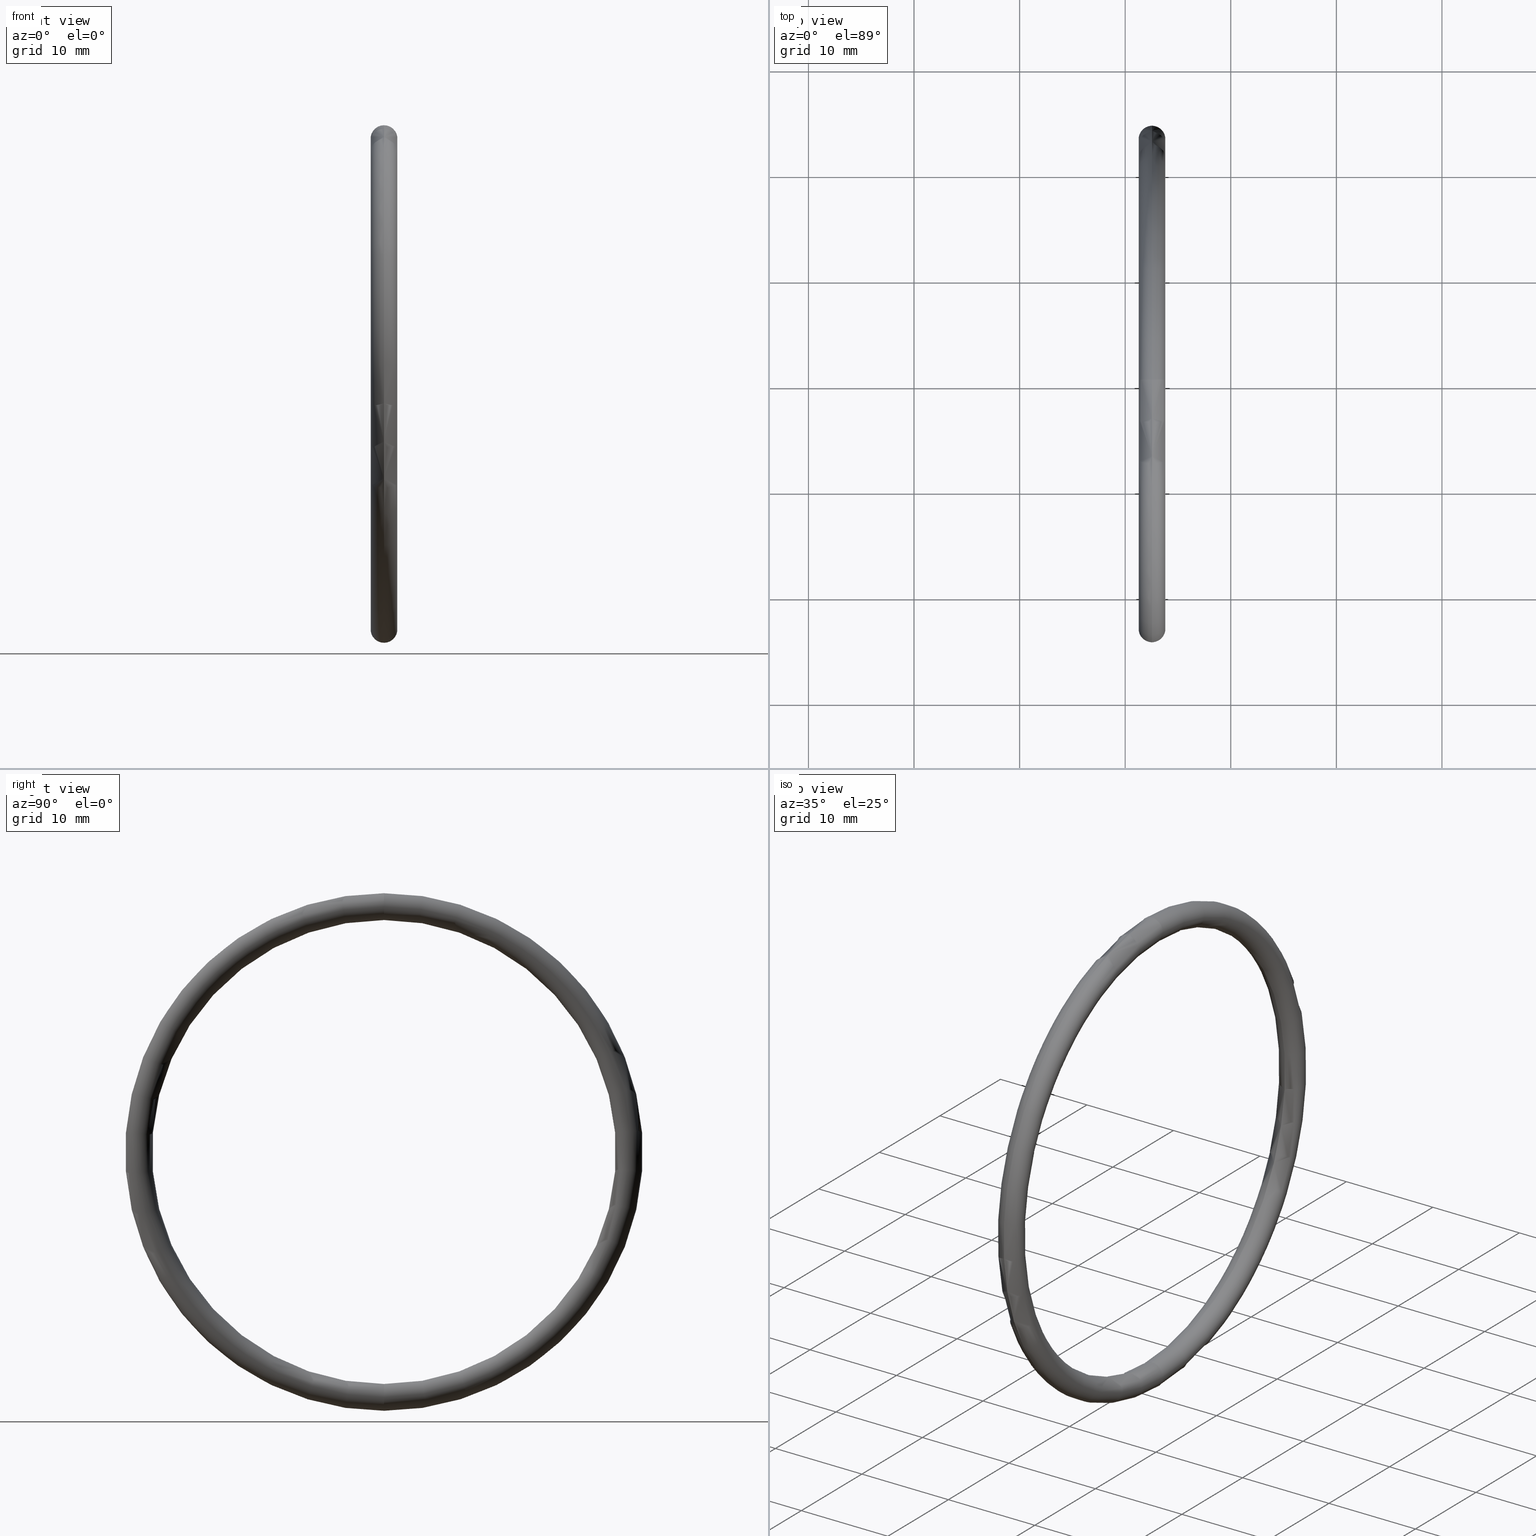
[diagram: canonical four-view strip — front | top / right | iso, engineering-drawing reading convention]
A machine part, canonical four-view strip (front | top / right | iso — engineering-drawing reading convention). The complete STEP part file that produces these views, byte-faithful:
ISO-10303-21;
HEADER;
FILE_DESCRIPTION (( 'STEP AP203' ),
    '1' );
FILE_NAME ('OR-64-BN.STEP',
    '2008-03-29T10:09:37',
    ( 'Baystate-05' ),
    ( 'BayState InfoTech' ),
    'SwSTEP 2.0',
    'SolidWorks 2007',
    '' );
FILE_SCHEMA (( 'CONFIG_CONTROL_DESIGN' ));
ENDSEC;

DATA;
#1 = MANIFOLD_SOLID_BREP ( 'NONE', #58 ) ;
#2 = EDGE_CURVE ( 'NONE', #34, #6, #30, .T. ) ;
#3 = ORIENTED_EDGE ( 'NONE', *, *, #21, .T. ) ;
#4 = ORIENTED_EDGE ( 'NONE', *, *, #66, .F. ) ;
#5 = VERTEX_POINT ( 'NONE', #14 ) ;
#6 = VERTEX_POINT ( 'NONE', #13 ) ;
#7 = ORIENTED_EDGE ( 'NONE', *, *, #55, .F. ) ;
#8 = ORIENTED_EDGE ( 'NONE', *, *, #9, .F. ) ;
#9 = EDGE_CURVE ( 'NONE', #6, #54, #44, .T. ) ;
#10 = ADVANCED_FACE ( 'NONE', ( #12 ), #39, .T. ) ;
#11 = CARTESIAN_POINT ( 'NONE',  ( 0.1000000000000001300, 0.0000000000000000000, 0.0000000000000000000 ) ) ;
#12 = FACE_OUTER_BOUND ( 'NONE', #18, .T. ) ;
#13 = CARTESIAN_POINT ( 'NONE',  ( 0.1000000000000001300, 0.0000000000000000000, 0.8649999999999998800 ) ) ;
#14 = CARTESIAN_POINT ( 'NONE',  ( 0.1000000000000001300, 1.181784161177195800E-016, -0.9649999999999999700 ) ) ;
#15 = DIRECTION ( 'NONE',  ( 0.0000000000000000000, 0.0000000000000000000, -1.000000000000000000 ) ) ;
#16 = DIRECTION ( 'NONE',  ( 0.0000000000000000000, -1.000000000000000000, 0.0000000000000000000 ) ) ;
#17 = CARTESIAN_POINT ( 'NONE',  ( 0.1000000000000001300, 0.0000000000000000000, 0.9149999999999999200 ) ) ;
#18 = EDGE_LOOP ( 'NONE', ( #19, #20, #62, #46 ) ) ;
#19 = ORIENTED_EDGE ( 'NONE', *, *, #65, .F. ) ;
#20 = ORIENTED_EDGE ( 'NONE', *, *, #21, .F. ) ;
#21 = EDGE_CURVE ( 'NONE', #6, #34, #52, .T. ) ;
#22 = ORIENTED_EDGE ( 'NONE', *, *, #66, .T. ) ;
#23 = ORIENTED_EDGE ( 'NONE', *, *, #2, .T. ) ;
#24 = CARTESIAN_POINT ( 'NONE',  ( 0.1000000000000001300, 0.0000000000000000000, 0.9649999999999999700 ) ) ;
#25 = DIRECTION ( 'NONE',  ( 0.0000000000000000000, 0.0000000000000000000, 1.000000000000000000 ) ) ;
#26 = DIRECTION ( 'NONE',  ( -1.000000000000000000, 0.0000000000000000000, 0.0000000000000000000 ) ) ;
#27 = CARTESIAN_POINT ( 'NONE',  ( 0.1000000000000001300, 0.0000000000000000000, 0.0000000000000000000 ) ) ;
#28 = AXIS2_PLACEMENT_3D ( 'NONE', #27, #26, #25 ) ;
#29 = AXIS2_PLACEMENT_3D ( 'NONE', #17, #16, #15 ) ;
#30 = CIRCLE ( 'NONE', #29, 0.05000000000000001000 ) ;
#31 = ORIENTED_EDGE ( 'NONE', *, *, #2, .F. ) ;
#32 = ORIENTED_EDGE ( 'NONE', *, *, #33, .T. ) ;
#33 = EDGE_CURVE ( 'NONE', #5, #34, #47, .T. ) ;
#34 = VERTEX_POINT ( 'NONE', #24 ) ;
#35 = EDGE_CURVE ( 'NONE', #54, #5, #196, .T. ) ;
#36 = ADVANCED_FACE ( 'NONE', ( #191 ), #193, .T. ) ;
#37 = CARTESIAN_POINT ( 'NONE',  ( 0.1000000000000001300, 0.0000000000000000000, 0.0000000000000000000 ) ) ;
#38 = AXIS2_PLACEMENT_3D ( 'NONE', #37, #40, #53 ) ;
#39 = TOROIDAL_SURFACE ( 'NONE', #38, 0.9149999999999999200, 0.05000000000000002400 ) ;
#40 = DIRECTION ( 'NONE',  ( -1.000000000000000000, 0.0000000000000000000, 0.0000000000000000000 ) ) ;
#41 = DIRECTION ( 'NONE',  ( 0.0000000000000000000, 0.0000000000000000000, 1.000000000000000000 ) ) ;
#42 = DIRECTION ( 'NONE',  ( -1.000000000000000000, 0.0000000000000000000, 0.0000000000000000000 ) ) ;
#43 = AXIS2_PLACEMENT_3D ( 'NONE', #11, #42, #41 ) ;
#44 = CIRCLE ( 'NONE', #43, 0.8649999999999998800 ) ;
#45 = EDGE_LOOP ( 'NONE', ( #59, #61, #60, #3 ) ) ;
#46 = ORIENTED_EDGE ( 'NONE', *, *, #35, .T. ) ;
#47 = CIRCLE ( 'NONE', #28, 0.9649999999999999700 ) ;
#48 = DIRECTION ( 'NONE',  ( 0.0000000000000000000, 0.0000000000000000000, -1.000000000000000000 ) ) ;
#49 = DIRECTION ( 'NONE',  ( 0.0000000000000000000, -1.000000000000000000, 0.0000000000000000000 ) ) ;
#50 = CARTESIAN_POINT ( 'NONE',  ( 0.1000000000000001300, 0.0000000000000000000, 0.9149999999999999200 ) ) ;
#51 = AXIS2_PLACEMENT_3D ( 'NONE', #50, #49, #48 ) ;
#52 = CIRCLE ( 'NONE', #51, 0.05000000000000001000 ) ;
#53 = DIRECTION ( 'NONE',  ( 0.0000000000000000000, 0.0000000000000000000, 1.000000000000000000 ) ) ;
#54 = VERTEX_POINT ( 'NONE', #166 ) ;
#55 = EDGE_CURVE ( 'NONE', #54, #6, #124, .T. ) ;
#56 = ADVANCED_FACE ( 'NONE', ( #125 ), #169, .T. ) ;
#57 = EDGE_LOOP ( 'NONE', ( #31, #64, #22, #8 ) ) ;
#58 = CLOSED_SHELL ( 'NONE', ( #67, #56, #10, #36 ) ) ;
#59 = ORIENTED_EDGE ( 'NONE', *, *, #33, .F. ) ;
#60 = ORIENTED_EDGE ( 'NONE', *, *, #55, .T. ) ;
#61 = ORIENTED_EDGE ( 'NONE', *, *, #35, .F. ) ;
#62 = ORIENTED_EDGE ( 'NONE', *, *, #9, .T. ) ;
#63 = EDGE_LOOP ( 'NONE', ( #4, #32, #23, #7 ) ) ;
#64 = ORIENTED_EDGE ( 'NONE', *, *, #65, .T. ) ;
#65 = EDGE_CURVE ( 'NONE', #34, #5, #71, .T. ) ;
#66 = EDGE_CURVE ( 'NONE', #5, #54, #79, .T. ) ;
#67 = ADVANCED_FACE ( 'NONE', ( #80 ), #81, .T. ) ;
#68 = DIRECTION ( 'NONE',  ( -1.000000000000000000, 0.0000000000000000000, 0.0000000000000000000 ) ) ;
#69 = CARTESIAN_POINT ( 'NONE',  ( 0.1000000000000001300, 0.0000000000000000000, 0.0000000000000000000 ) ) ;
#70 = AXIS2_PLACEMENT_3D ( 'NONE', #69, #68, #126 ) ;
#71 = CIRCLE ( 'NONE', #70, 0.9649999999999999700 ) ;
#72 = ORGANIZATION ( 'UNSPECIFIED', 'UNSPECIFIED', '' ) ;
#73 = PERSON ( 'UNSPECIFIED', 'UNSPECIFIED', 'UNSPECIFIED', ('UNSPECIFIED'), ('UNSPECIFIED'), ('UNSPECIFIED') ) ;
#74 = PRODUCT ( 'OR-64-BN', 'OR-64-BN', '', ( #75 ) ) ;
#75 = MECHANICAL_CONTEXT ( 'NONE', #152, 'mechanical' ) ;
#76 = APPLICATION_PROTOCOL_DEFINITION ( 'international standard', 'config_control_design', 1994, #152 ) ;
#77 = CARTESIAN_POINT ( 'NONE',  ( 0.1000000000000001300, 1.120551821219828000E-016, -0.9149999999999999200 ) ) ;
#78 = AXIS2_PLACEMENT_3D ( 'NONE', #77, #83, #82 ) ;
#79 = CIRCLE ( 'NONE', #78, 0.05000000000000001000 ) ;
#80 = FACE_OUTER_BOUND ( 'NONE', #63, .T. ) ;
#81 = TOROIDAL_SURFACE ( 'NONE', #122, 0.9149999999999999200, 0.05000000000000002400 ) ;
#82 = DIRECTION ( 'NONE',  ( 0.0000000000000000000, -1.224646799147354700E-016, 1.000000000000000000 ) ) ;
#83 = DIRECTION ( 'NONE',  ( 0.0000000000000000000, 1.000000000000000000, 1.224646799147353200E-016 ) ) ;
#84 =( CONVERSION_BASED_UNIT ( 'INCH', #85 ) LENGTH_UNIT ( ) NAMED_UNIT ( #86 ) );
#85 = LENGTH_MEASURE_WITH_UNIT ( LENGTH_MEASURE( 0.02539999999999999900 ), #95 );
#86 = DIMENSIONAL_EXPONENTS ( 1.000000000000000000, 0.0000000000000000000, 0.0000000000000000000, 0.0000000000000000000, 0.0000000000000000000, 0.0000000000000000000, 0.0000000000000000000 ) ;
#87 = UNCERTAINTY_MEASURE_WITH_UNIT (LENGTH_MEASURE( 1.000000000000000100E-005 ), #84, 'distance_accuracy_value', 'NONE');
#88 =( NAMED_UNIT ( * ) SI_UNIT ( $, .STERADIAN. ) SOLID_ANGLE_UNIT ( ) );
#89 = CARTESIAN_POINT ( 'NONE',  ( 0.1000000000000001300, 1.120551821219828000E-016, -0.9149999999999999200 ) ) ;
#90 = CARTESIAN_POINT ( 'NONE',  ( 0.1000000000000001300, 0.0000000000000000000, 0.0000000000000000000 ) ) ;
#91 = DIRECTION ( 'NONE',  ( 0.0000000000000000000, 0.0000000000000000000, 1.000000000000000000 ) ) ;
#92 = DIRECTION ( 'NONE',  ( -1.000000000000000000, 0.0000000000000000000, 0.0000000000000000000 ) ) ;
#93 = CARTESIAN_POINT ( 'NONE',  ( 0.1000000000000001300, 0.0000000000000000000, 0.0000000000000000000 ) ) ;
#94 = AXIS2_PLACEMENT_3D ( 'NONE', #93, #92, #91 ) ;
#95 =( LENGTH_UNIT ( ) NAMED_UNIT ( * ) SI_UNIT ( $, .METRE. ) );
#96 = DIRECTION ( 'NONE',  ( 0.0000000000000000000, 0.0000000000000000000, 1.000000000000000000 ) ) ;
#97 = AXIS2_PLACEMENT_3D ( 'NONE', #123, #145, #96 ) ;
#98 = PERSON_AND_ORGANIZATION ( #73, #72 ) ;
#99 = CC_DESIGN_APPROVAL ( #107, ( #110 ) ) ;
#100 = APPROVAL_DATE_TIME ( #101, #107 ) ;
#101 = DATE_AND_TIME ( #102, #103 ) ;
#102 = CALENDAR_DATE ( 2008, 29, 3 ) ;
#103 = LOCAL_TIME ( 15, 39, 37.00000000000000000, #104 ) ;
#104 = COORDINATED_UNIVERSAL_TIME_OFFSET ( 5, 30, .AHEAD. ) ;
#105 = APPROVAL_PERSON_ORGANIZATION ( #109, #107, #106 ) ;
#106 = APPROVAL_ROLE ( '' ) ;
#107 = APPROVAL ( #108, 'UNSPECIFIED' ) ;
#108 = APPROVAL_STATUS ( 'not_yet_approved' ) ;
#109 = PERSON_AND_ORGANIZATION ( #73, #72 ) ;
#110 = PRODUCT_DEFINITION_FORMATION_WITH_SPECIFIED_SOURCE ( 'ANY', '', #74, .NOT_KNOWN. ) ;
#111 = CC_DESIGN_DATE_AND_TIME_ASSIGNMENT ( #113, #112, ( #184 ) ) ;
#112 = DATE_TIME_ROLE ( 'creation_date' ) ;
#113 = DATE_AND_TIME ( #114, #115 ) ;
#114 = CALENDAR_DATE ( 2008, 29, 3 ) ;
#115 = LOCAL_TIME ( 15, 39, 37.00000000000000000, #116 ) ;
#116 = COORDINATED_UNIVERSAL_TIME_OFFSET ( 5, 30, .AHEAD. ) ;
#117 =( NAMED_UNIT ( * ) PLANE_ANGLE_UNIT ( ) SI_UNIT ( $, .RADIAN. ) );
#118 = CARTESIAN_POINT ( 'NONE',  ( 0.0000000000000000000, 0.0000000000000000000, 0.0000000000000000000 ) ) ;
#119 = DIRECTION ( 'NONE',  ( 0.0000000000000000000, 0.0000000000000000000, 1.000000000000000000 ) ) ;
#120 = DIRECTION ( 'NONE',  ( -1.000000000000000000, 0.0000000000000000000, 0.0000000000000000000 ) ) ;
#121 = CARTESIAN_POINT ( 'NONE',  ( 0.1000000000000001300, 0.0000000000000000000, 0.0000000000000000000 ) ) ;
#122 = AXIS2_PLACEMENT_3D ( 'NONE', #121, #120, #119 ) ;
#123 = CARTESIAN_POINT ( 'NONE',  ( 0.1000000000000001300, 0.0000000000000000000, 0.0000000000000000000 ) ) ;
#124 = CIRCLE ( 'NONE', #97, 0.8649999999999998800 ) ;
#125 = FACE_OUTER_BOUND ( 'NONE', #57, .T. ) ;
#126 = DIRECTION ( 'NONE',  ( 0.0000000000000000000, 0.0000000000000000000, 1.000000000000000000 ) ) ;
#127 = AXIS2_PLACEMENT_3D ( 'NONE', #89, #147, #146 ) ;
#128 = CC_DESIGN_APPROVAL ( #136, ( #156 ) ) ;
#129 = APPROVAL_DATE_TIME ( #130, #136 ) ;
#130 = DATE_AND_TIME ( #131, #132 ) ;
#131 = CALENDAR_DATE ( 2008, 29, 3 ) ;
#132 = LOCAL_TIME ( 15, 39, 37.00000000000000000, #133 ) ;
#133 = COORDINATED_UNIVERSAL_TIME_OFFSET ( 5, 30, .AHEAD. ) ;
#134 = APPROVAL_PERSON_ORGANIZATION ( #138, #136, #135 ) ;
#135 = APPROVAL_ROLE ( '' ) ;
#136 = APPROVAL ( #137, 'UNSPECIFIED' ) ;
#137 = APPROVAL_STATUS ( 'not_yet_approved' ) ;
#138 = PERSON_AND_ORGANIZATION ( #73, #72 ) ;
#139 = CC_DESIGN_DATE_AND_TIME_ASSIGNMENT ( #141, #140, ( #156 ) ) ;
#140 = DATE_TIME_ROLE ( 'classification_date' ) ;
#141 = DATE_AND_TIME ( #142, #143 ) ;
#142 = CALENDAR_DATE ( 2008, 29, 3 ) ;
#143 = LOCAL_TIME ( 15, 39, 37.00000000000000000, #144 ) ;
#144 = COORDINATED_UNIVERSAL_TIME_OFFSET ( 5, 30, .AHEAD. ) ;
#145 = DIRECTION ( 'NONE',  ( -1.000000000000000000, 0.0000000000000000000, 0.0000000000000000000 ) ) ;
#146 = DIRECTION ( 'NONE',  ( 0.0000000000000000000, -1.224646799147354700E-016, 1.000000000000000000 ) ) ;
#147 = DIRECTION ( 'NONE',  ( 0.0000000000000000000, 1.000000000000000000, 1.224646799147353200E-016 ) ) ;
#148 = DIRECTION ( 'NONE',  ( 1.000000000000000000, 0.0000000000000000000, 0.0000000000000000000 ) ) ;
#149 = DIRECTION ( 'NONE',  ( 0.0000000000000000000, 0.0000000000000000000, 1.000000000000000000 ) ) ;
#150 = AXIS2_PLACEMENT_3D ( 'NONE', #118, #149, #148 ) ;
#151 = SHAPE_DEFINITION_REPRESENTATION ( #163, #194 ) ;
#152 = APPLICATION_CONTEXT ( 'configuration controlled 3d designs of mechanical parts and assemblies' ) ;
#153 = CC_DESIGN_PERSON_AND_ORGANIZATION_ASSIGNMENT ( #155, #154, ( #156 ) ) ;
#154 = PERSON_AND_ORGANIZATION_ROLE ( 'classification_officer' ) ;
#155 = PERSON_AND_ORGANIZATION ( #73, #72 ) ;
#156 = SECURITY_CLASSIFICATION ( '', '', #157 ) ;
#157 = SECURITY_CLASSIFICATION_LEVEL ( 'unclassified' ) ;
#158 = CC_DESIGN_PERSON_AND_ORGANIZATION_ASSIGNMENT ( #160, #159, ( #110 ) ) ;
#159 = PERSON_AND_ORGANIZATION_ROLE ( 'design_supplier' ) ;
#160 = PERSON_AND_ORGANIZATION ( #73, #72 ) ;
#161 = CC_DESIGN_PERSON_AND_ORGANIZATION_ASSIGNMENT ( #98, #162, ( #110 ) ) ;
#162 = PERSON_AND_ORGANIZATION_ROLE ( 'creator' ) ;
#163 = PRODUCT_DEFINITION_SHAPE ( 'NONE', 'NONE',  #184 ) ;
#164 = PRODUCT_RELATED_PRODUCT_CATEGORY ( 'detail', '', ( #74 ) ) ;
#165 = CC_DESIGN_SECURITY_CLASSIFICATION ( #156, ( #110 ) ) ;
#166 = CARTESIAN_POINT ( 'NONE',  ( 0.1000000000000001300, 1.059319481262460300E-016, -0.8649999999999998800 ) ) ;
#167 = DIRECTION ( 'NONE',  ( 0.0000000000000000000, 0.0000000000000000000, 1.000000000000000000 ) ) ;
#168 = DIRECTION ( 'NONE',  ( -1.000000000000000000, 0.0000000000000000000, 0.0000000000000000000 ) ) ;
#169 = TOROIDAL_SURFACE ( 'NONE', #94, 0.9149999999999999200, 0.05000000000000002400 ) ;
#170 = CC_DESIGN_PERSON_AND_ORGANIZATION_ASSIGNMENT ( #172, #171, ( #184 ) ) ;
#171 = PERSON_AND_ORGANIZATION_ROLE ( 'creator' ) ;
#172 = PERSON_AND_ORGANIZATION ( #73, #72 ) ;
#173 = CC_DESIGN_APPROVAL ( #181, ( #184 ) ) ;
#174 = APPROVAL_DATE_TIME ( #175, #181 ) ;
#175 = DATE_AND_TIME ( #176, #177 ) ;
#176 = CALENDAR_DATE ( 2008, 29, 3 ) ;
#177 = LOCAL_TIME ( 15, 39, 37.00000000000000000, #178 ) ;
#178 = COORDINATED_UNIVERSAL_TIME_OFFSET ( 5, 30, .AHEAD. ) ;
#179 = APPROVAL_PERSON_ORGANIZATION ( #183, #181, #180 ) ;
#180 = APPROVAL_ROLE ( '' ) ;
#181 = APPROVAL ( #182, 'UNSPECIFIED' ) ;
#182 = APPROVAL_STATUS ( 'not_yet_approved' ) ;
#183 = PERSON_AND_ORGANIZATION ( #73, #72 ) ;
#184 = PRODUCT_DEFINITION ( 'UNKNOWN', '', #110, #185 ) ;
#185 = DESIGN_CONTEXT ( 'detailed design', #187, 'design' ) ;
#186 = APPLICATION_PROTOCOL_DEFINITION ( 'international standard', 'config_control_design', 1994, #187 ) ;
#187 = APPLICATION_CONTEXT ( 'configuration controlled 3d designs of mechanical parts and assemblies' ) ;
#188 = CC_DESIGN_PERSON_AND_ORGANIZATION_ASSIGNMENT ( #190, #189, ( #74 ) ) ;
#189 = PERSON_AND_ORGANIZATION_ROLE ( 'design_owner' ) ;
#190 = PERSON_AND_ORGANIZATION ( #73, #72 ) ;
#191 = FACE_OUTER_BOUND ( 'NONE', #45, .T. ) ;
#192 = AXIS2_PLACEMENT_3D ( 'NONE', #90, #168, #167 ) ;
#193 = TOROIDAL_SURFACE ( 'NONE', #192, 0.9149999999999999200, 0.05000000000000002400 ) ;
#194 = ADVANCED_BREP_SHAPE_REPRESENTATION ( 'OR-64-BN', ( #1, #150 ), #195 ) ;
#195 =( GEOMETRIC_REPRESENTATION_CONTEXT ( 3 ) GLOBAL_UNCERTAINTY_ASSIGNED_CONTEXT ( ( #87 ) ) GLOBAL_UNIT_ASSIGNED_CONTEXT ( ( #84, #117, #88 ) ) REPRESENTATION_CONTEXT ( 'NONE', 'WORKASPACE' ) );
#196 = CIRCLE ( 'NONE', #127, 0.05000000000000001000 ) ;
ENDSEC;
END-ISO-10303-21;
